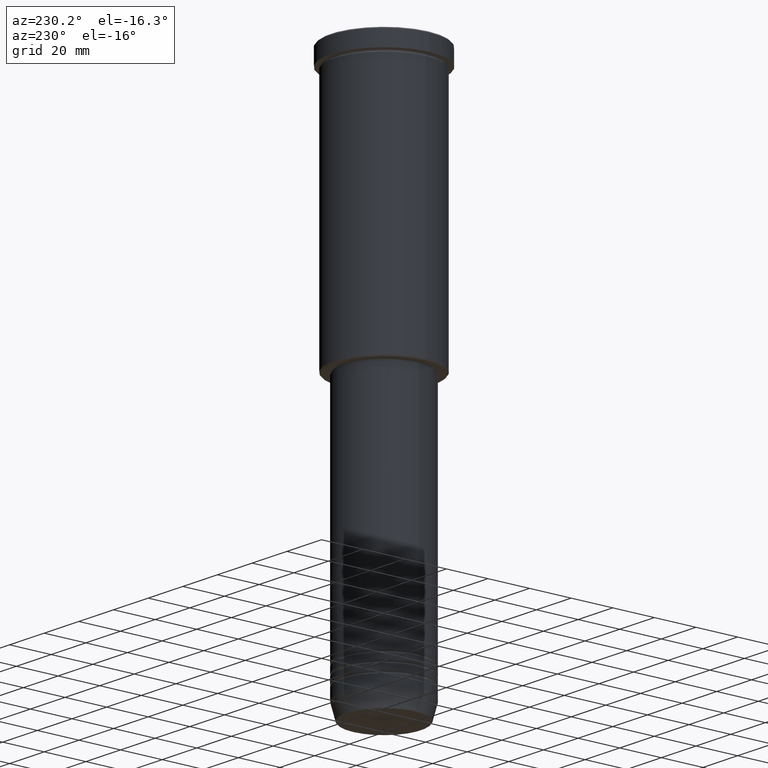
[diagram: clean part render]
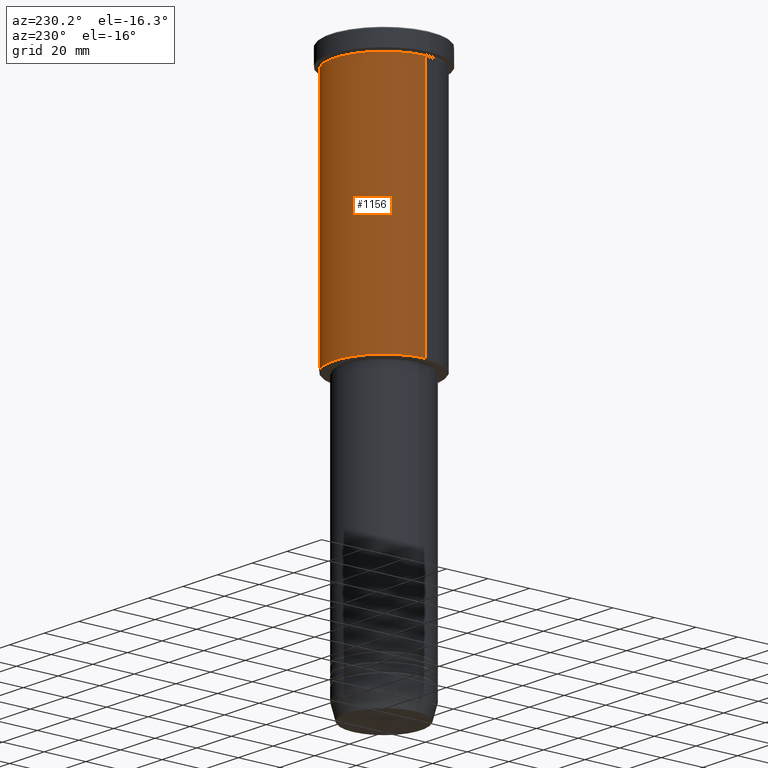
[diagram: same view with one face highlighted and labeled with its STEP entity id]
A machine part, auxiliary view. The second image highlights one B-rep face of the part: STEP entity #1156.
In plain terms, the highlighted cylindrical surface (partial cylindrical patch) has radius 24 mm, axis along (-0, -0, 1).
Its self-contained STEP definition (entity closure, byte-faithful):
#13 = DIRECTION ( 'NONE',  ( -0.000000000000000000, -0.000000000000000000, 1.000000000000000000 ) ) ;
#45 = AXIS2_PLACEMENT_3D ( 'NONE', #657, #13, #382 ) ;
#52 = LINE ( 'NONE', #146, #911 ) ;
#73 = ORIENTED_EDGE ( 'NONE', *, *, #267, .F. ) ;
#119 = CYLINDRICAL_SURFACE ( 'NONE', #998, 24.00000000000000000 ) ;
#133 = CARTESIAN_POINT ( 'NONE',  ( -24.00000000000000000, 2.939152317953647894E-15, -125.4999999999999716 ) ) ;
#146 = CARTESIAN_POINT ( 'NONE',  ( 24.00000000000000000, 0.000000000000000000, 0.000000000000000000 ) ) ;
#190 = EDGE_CURVE ( 'NONE', #1146, #746, #1081, .T. ) ;
#194 = DIRECTION ( 'NONE',  ( -0.000000000000000000, -0.000000000000000000, 1.000000000000000000 ) ) ;
#212 = CARTESIAN_POINT ( 'NONE',  ( -24.00000000000000000, 2.939152317953647894E-15, 0.000000000000000000 ) ) ;
#267 = EDGE_CURVE ( 'NONE', #1146, #713, #52, .T. ) ;
#291 = CARTESIAN_POINT ( 'NONE',  ( -24.00000000000000000, 2.939152317953647894E-15, -8.999999999999994671 ) ) ;
#307 = CARTESIAN_POINT ( 'NONE',  ( 24.00000000000000000, 0.000000000000000000, -8.999999999999994671 ) ) ;
#382 = DIRECTION ( 'NONE',  ( 1.000000000000000000, 0.000000000000000000, 0.000000000000000000 ) ) ;
#386 = ORIENTED_EDGE ( 'NONE', *, *, #1022, .F. ) ;
#409 = CARTESIAN_POINT ( 'NONE',  ( 24.00000000000000000, 0.000000000000000000, -125.4999999999999716 ) ) ;
#473 = FACE_OUTER_BOUND ( 'NONE', #1171, .T. ) ;
#479 = DIRECTION ( 'NONE',  ( -0.000000000000000000, -0.000000000000000000, 1.000000000000000000 ) ) ;
#540 = VERTEX_POINT ( 'NONE', #291 ) ;
#582 = DIRECTION ( 'NONE',  ( -0.000000000000000000, -0.000000000000000000, 1.000000000000000000 ) ) ;
#657 = CARTESIAN_POINT ( 'NONE',  ( 0.000000000000000000, 0.000000000000000000, -8.999999999999994671 ) ) ;
#671 = ORIENTED_EDGE ( 'NONE', *, *, #190, .T. ) ;
#680 = DIRECTION ( 'NONE',  ( -0.000000000000000000, -0.000000000000000000, 1.000000000000000000 ) ) ;
#713 = VERTEX_POINT ( 'NONE', #307 ) ;
#746 = VERTEX_POINT ( 'NONE', #133 ) ;
#749 = DIRECTION ( 'NONE',  ( -1.000000000000000000, 0.000000000000000000, 0.000000000000000000 ) ) ;
#752 = LINE ( 'NONE', #212, #1170 ) ;
#790 = EDGE_CURVE ( 'NONE', #746, #540, #752, .T. ) ;
#907 = CIRCLE ( 'NONE', #45, 24.00000000000000000 ) ;
#911 = VECTOR ( 'NONE', #479, 1000.000000000000000 ) ;
#966 = AXIS2_PLACEMENT_3D ( 'NONE', #1099, #194, #749 ) ;
#998 = AXIS2_PLACEMENT_3D ( 'NONE', #1027, #680, #1139 ) ;
#1022 = EDGE_CURVE ( 'NONE', #713, #540, #907, .T. ) ;
#1027 = CARTESIAN_POINT ( 'NONE',  ( 0.000000000000000000, 0.000000000000000000, 0.000000000000000000 ) ) ;
#1081 = CIRCLE ( 'NONE', #966, 24.00000000000000000 ) ;
#1099 = CARTESIAN_POINT ( 'NONE',  ( 0.000000000000000000, 0.000000000000000000, -125.4999999999999716 ) ) ;
#1139 = DIRECTION ( 'NONE',  ( 1.000000000000000000, 0.000000000000000000, 0.000000000000000000 ) ) ;
#1146 = VERTEX_POINT ( 'NONE', #409 ) ;
#1156 = ADVANCED_FACE ( 'NONE', ( #473 ), #119, .T. ) ;
#1170 = VECTOR ( 'NONE', #582, 1000.000000000000000 ) ;
#1171 = EDGE_LOOP ( 'NONE', ( #671, #1176, #386, #73 ) ) ;
#1176 = ORIENTED_EDGE ( 'NONE', *, *, #790, .T. ) ;